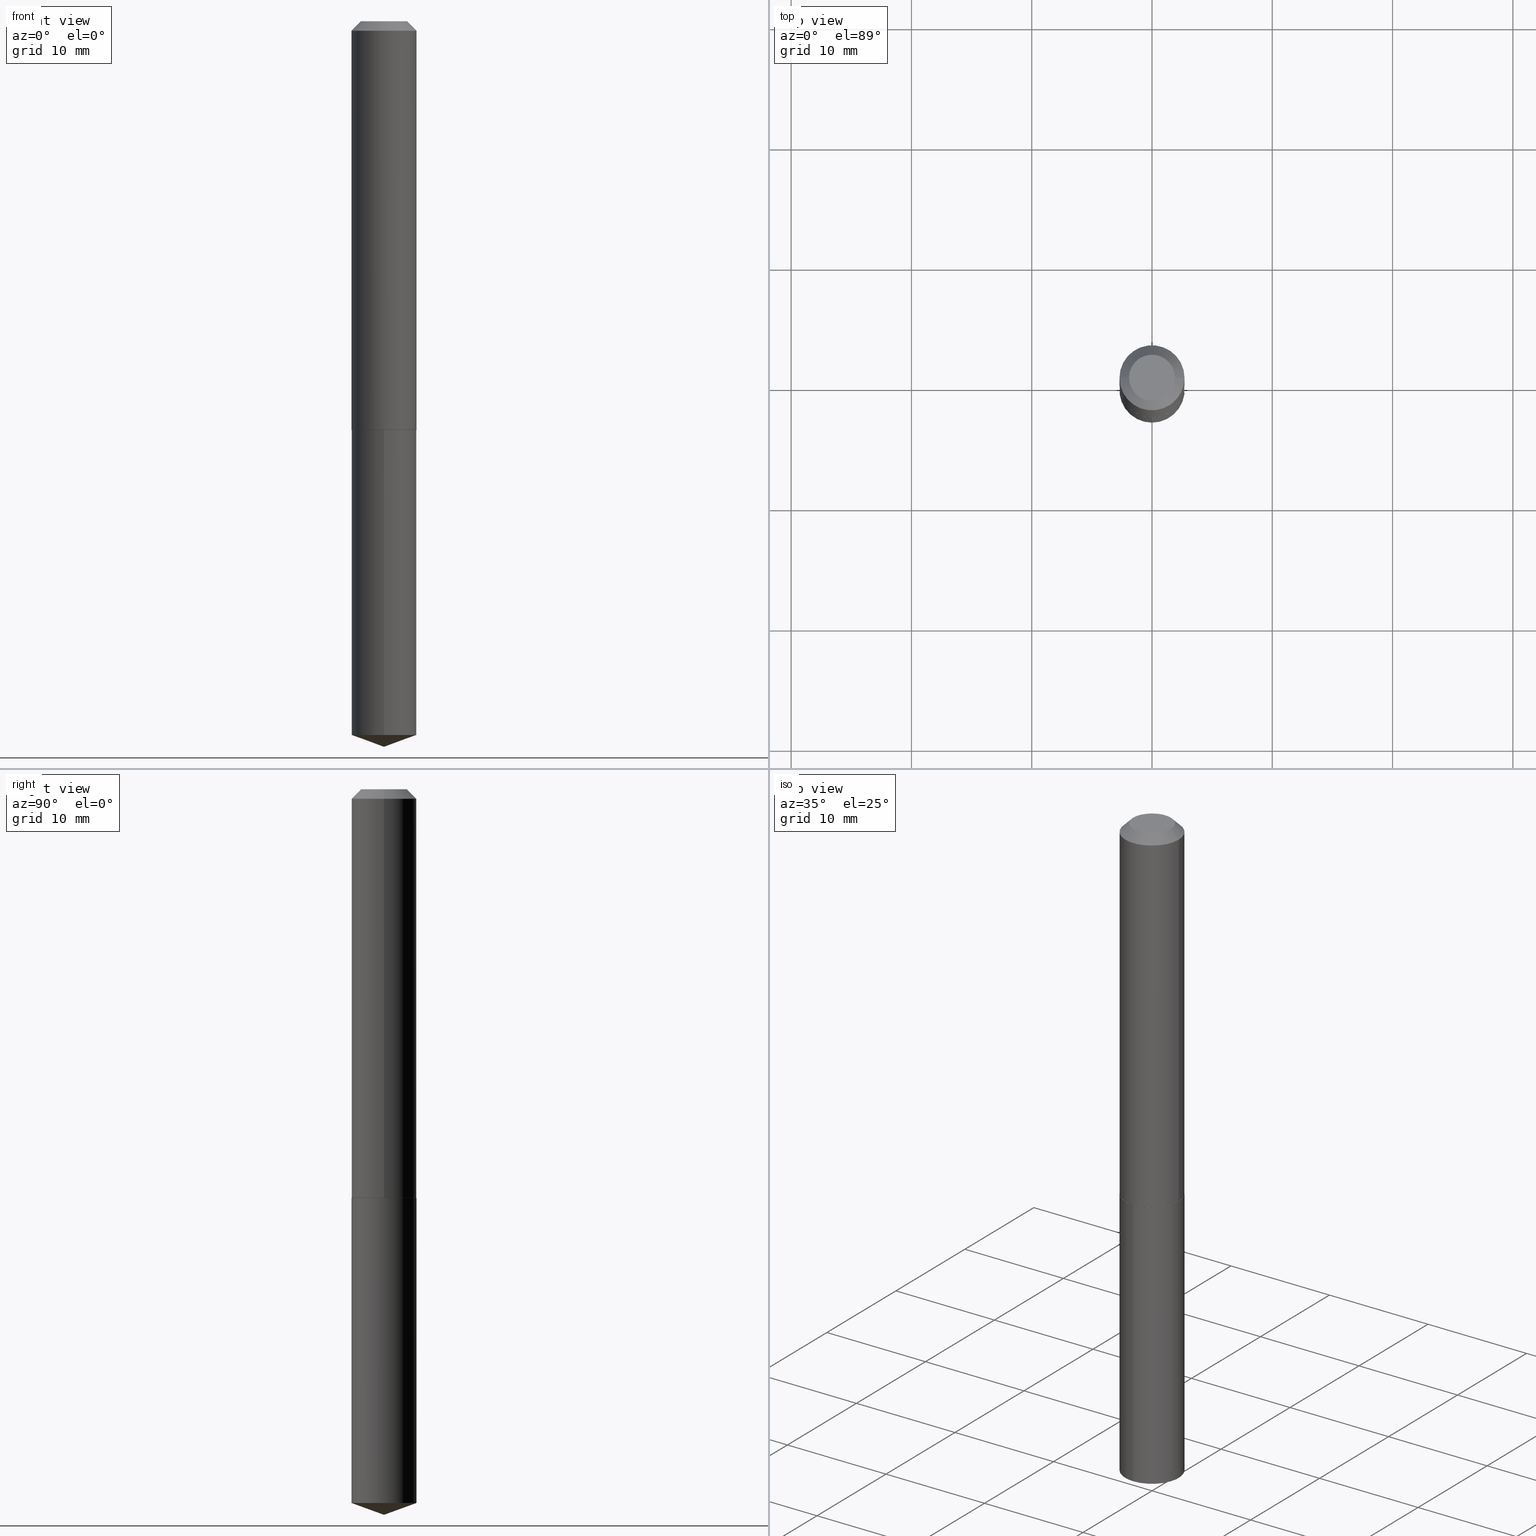
[diagram: canonical four-view strip — front | top / right | iso, engineering-drawing reading convention]
A machine part, canonical four-view strip (front | top / right | iso — engineering-drawing reading convention). The complete STEP part file that produces these views, byte-faithful:
ISO-10303-21;
HEADER;
FILE_DESCRIPTION (( 'STEP AP203' ),
    '1' );
FILE_NAME ('56212.STEP',
    '2024-04-22T20:56:59',
    ( '' ),
    ( '' ),
    'SwSTEP 2.0',
    'SolidWorks 2023',
    '' );
FILE_SCHEMA (( 'CONFIG_CONTROL_DESIGN' ));
ENDSEC;

DATA;
#1 = LINE ( 'NONE', #26, #91 ) ;
#2 = DIRECTION ( 'NONE',  ( -2.445468806185136597E-29, 3.491481338843145583E-15, 1.000000000000000000 ) ) ;
#3 = LINE ( 'NONE', #360, #253 ) ;
#4 = VERTEX_POINT ( 'NONE', #80 ) ;
#5 = CARTESIAN_POINT ( 'NONE',  ( -9.047339529489491290E-28, 1.291632102237689580E-13, 36.99507874015748143 ) ) ;
#6 = LENGTH_MEASURE_WITH_UNIT ( LENGTH_MEASURE( 0.02539999999999999897 ), #346 );
#7 = CIRCLE ( 'NONE', #116, 0.1064999999999999974 ) ;
#8 = DIRECTION ( 'NONE',  ( -2.445549265505865349E-29, 3.491366116516402154E-15, 1.000000000000000000 ) ) ;
#9 =( NAMED_UNIT ( * ) SI_UNIT ( $, .STERADIAN. ) SOLID_ANGLE_UNIT ( ) );
#10 = DIRECTION ( 'NONE',  ( 1.000000000000000000, -6.982962677686262766E-15, 0.000000000000000000 ) ) ;
#11 = DIMENSIONAL_EXPONENTS ( 1.000000000000000000, 0.000000000000000000, 0.000000000000000000, 0.000000000000000000, 0.000000000000000000, 0.000000000000000000, 0.000000000000000000 ) ;
#12 = CARTESIAN_POINT ( 'NONE',  ( 5.989671091818683705E-48, -8.551662891793989687E-34, -2.449293598294718806E-19 ) ) ;
#13 = ORIENTED_EDGE ( 'NONE', *, *, #225, .F. ) ;
#14 = PERSON_AND_ORGANIZATION_ROLE ( 'design_owner' ) ;
#15 = AXIS2_PLACEMENT_3D ( 'NONE', #123, #34, #120 ) ;
#16 = CARTESIAN_POINT ( 'NONE',  ( 7.567280135845637736E-16, 0.1064999999999953206, -1.338000000000000300 ) ) ;
#17 = PRODUCT_RELATED_PRODUCT_CATEGORY ( 'detail', '', ( #338 ) ) ;
#18 = APPROVAL_ROLE ( '' ) ;
#19 = ORIENTED_EDGE ( 'NONE', *, *, #373, .T. ) ;
#20 = CIRCLE ( 'NONE', #275, 0.1065000000000001640 ) ;
#21 = EDGE_LOOP ( 'NONE', ( #39, #240 ) ) ;
#22 = CC_DESIGN_PERSON_AND_ORGANIZATION_ASSIGNMENT ( #77, #325, ( #340 ) ) ;
#23 = AXIS2_PLACEMENT_3D ( 'NONE', #144, #75, #187 ) ;
#24 = ORIENTED_EDGE ( 'NONE', *, *, #169, .T. ) ;
#25 = DIRECTION ( 'NONE',  ( 2.445468806185136597E-29, -3.491481338843145583E-15, -1.000000000000000000 ) ) ;
#26 = CARTESIAN_POINT ( 'NONE',  ( -0.1065000000000000807, 7.567280135845072715E-16, -5.238665871121478096E-30 ) ) ;
#27 = CYLINDRICAL_SURFACE ( 'NONE', #300, 0.1065000000000000807 ) ;
#28 = CYLINDRICAL_SURFACE ( 'NONE', #319, 0.1065000000000000807 ) ;
#29 = AXIS2_PLACEMENT_3D ( 'NONE', #255, #142, #382 ) ;
#30 = DIRECTION ( 'NONE',  ( -2.445549265505865068E-29, 3.491366116516402154E-15, 1.000000000000000000 ) ) ;
#31 = ORIENTED_EDGE ( 'NONE', *, *, #162, .F. ) ;
#32 = DIRECTION ( 'NONE',  ( 1.000000000000000000, -6.982962677686267499E-15, 4.876176775795935232E-29 ) ) ;
#33 = ORIENTED_EDGE ( 'NONE', *, *, #307, .T. ) ;
#34 = DIRECTION ( 'NONE',  ( -2.445468806185136597E-29, 3.491481338843145583E-15, 1.000000000000000000 ) ) ;
#35 = ADVANCED_FACE ( 'NONE', ( #326 ), #50, .F. ) ;
#36 = CARTESIAN_POINT ( 'NONE',  ( 7.567280135845393189E-16, 0.1064999999999953206, -1.338000000000000300 ) ) ;
#37 = CLOSED_SHELL ( 'NONE', ( #156, #87, #250, #278, #72, #320, #84, #375 ) ) ;
#38 = DIRECTION ( 'NONE',  ( -6.982962677686265133E-15, -1.000000000000000000, 2.565115487008698002E-15 ) ) ;
#39 = ORIENTED_EDGE ( 'NONE', *, *, #247, .T. ) ;
#40 = PERSON ( 'UNSPECIFIED', 'UNSPECIFIED', 'UNSPECIFIED', ('UNSPECIFIED'), ('UNSPECIFIED'), ('UNSPECIFIED') ) ;
#41 = ORIENTED_EDGE ( 'NONE', *, *, #239, .T. ) ;
#42 = APPROVAL_ROLE ( '' ) ;
#43 = VECTOR ( 'NONE', #79, 39.37007874015748143 ) ;
#44 = EDGE_CURVE ( 'NONE', #150, #4, #331, .T. ) ;
#45 = ORIENTED_EDGE ( 'NONE', *, *, #44, .T. ) ;
#46 = CIRCLE ( 'NONE', #262, 0.1064999999999999974 ) ;
#47 = LOCAL_TIME ( 16, 56, 59.00000000000000000, #293 ) ;
#48 = DIRECTION ( 'NONE',  ( 0.7071067811868009256, -2.468850131084911578E-15, 0.7071067811862938868 ) ) ;
#49 = PERSON_AND_ORGANIZATION ( #40, #100 ) ;
#50 = PLANE ( 'NONE',  #252 ) ;
#51 = EDGE_CURVE ( 'NONE', #174, #153, #347, .T. ) ;
#52 = EDGE_LOOP ( 'NONE', ( #226, #290 ) ) ;
#53 = CARTESIAN_POINT ( 'NONE',  ( -0.07524999999999999745, 5.800223374153149725E-16, -4.898587196628091026E-19 ) ) ;
#54 = AXIS2_PLACEMENT_3D ( 'NONE', #111, #221, #337 ) ;
#55 = CC_DESIGN_APPROVAL ( #229, ( #88 ) ) ;
#56 = APPROVAL_DATE_TIME ( #214, #266 ) ;
#57 = CARTESIAN_POINT ( 'NONE',  ( 3.270814528272620647E-29, -4.669856290702708218E-15, -1.337500000000000133 ) ) ;
#58 = DIRECTION ( 'NONE',  ( -2.445468806185136597E-29, 3.491481338843145583E-15, 1.000000000000000000 ) ) ;
#59 = EDGE_CURVE ( 'NONE', #174, #145, #305, .T. ) ;
#60 = DIRECTION ( 'NONE',  ( 1.000000000000000000, -6.982962677686265922E-15, 0.000000000000000000 ) ) ;
#61 = FACE_OUTER_BOUND ( 'NONE', #197, .T. ) ;
#62 = CARTESIAN_POINT ( 'NONE',  ( 0.07524999999999999745, -6.780021514669125702E-16, -4.898587196547362783E-19 ) ) ;
#63 = CARTESIAN_POINT ( 'NONE',  ( -7.436855251735545052E-16, -0.1065000000000046743, -1.337999999999999856 ) ) ;
#64 = DIRECTION ( 'NONE',  ( -2.445468806185136877E-29, 3.491481338843145188E-15, 1.000000000000000000 ) ) ;
#65 = AXIS2_PLACEMENT_3D ( 'NONE', #286, #134, #316 ) ;
#66 = CC_DESIGN_PERSON_AND_ORGANIZATION_ASSIGNMENT ( #155, #291, ( #88 ) ) ;
#67 = DIRECTION ( 'NONE',  ( 6.982962677686265922E-15, 1.000000000000000000, -3.491366116516402154E-15 ) ) ;
#68 = ORIENTED_EDGE ( 'NONE', *, *, #343, .T. ) ;
#69 = ORIENTED_EDGE ( 'NONE', *, *, #44, .F. ) ;
#70 = VECTOR ( 'NONE', #350, 39.37007874015748143 ) ;
#71 = CONICAL_SURFACE ( 'NONE', #54, 108.1684023407347013, 1.221730476396035270 ) ;
#72 = ADVANCED_FACE ( 'NONE', ( #166 ), #204, .T. ) ;
#73 = ORIENTED_EDGE ( 'NONE', *, *, #147, .T. ) ;
#74 = CC_DESIGN_PERSON_AND_ORGANIZATION_ASSIGNMENT ( #49, #135, ( #340 ) ) ;
#75 = DIRECTION ( 'NONE',  ( 2.445468806185136597E-29, -3.491481338843145583E-15, -1.000000000000000000 ) ) ;
#76 = CARTESIAN_POINT ( 'NONE',  ( 0.1065000000000001640, -5.413541815876296348E-15, -1.337500000000000133 ) ) ;
#77 = PERSON_AND_ORGANIZATION ( #40, #100 ) ;
#78 = CIRCLE ( 'NONE', #246, 0.1060000000000001774 ) ;
#79 = DIRECTION ( 'NONE',  ( 0.7071067811865453523, -7.319954787623248157E-15, -0.7071067811865496822 ) ) ;
#80 = CARTESIAN_POINT ( 'NONE',  ( 0.1065000000000000113, -8.527943170124366394E-16, -0.03125000000000020817 ) ) ;
#81 = DIRECTION ( 'NONE',  ( -2.438088387897960049E-29, 3.491481338843145188E-15, 1.000000000000000000 ) ) ;
#82 = CC_DESIGN_PERSON_AND_ORGANIZATION_ASSIGNMENT ( #298, #140, ( #218 ) ) ;
#83 = CALENDAR_DATE ( 2024, 22, 4 ) ;
#84 = ADVANCED_FACE ( 'NONE', ( #177 ), #355, .T. ) ;
#85 = DIRECTION ( 'NONE',  ( -2.445468806185136597E-29, 3.491481338843145583E-15, 1.000000000000000000 ) ) ;
#86 = AXIS2_PLACEMENT_3D ( 'NONE', #5, #93, #288 ) ;
#87 = ADVANCED_FACE ( 'NONE', ( #180 ), #28, .T. ) ;
#88 = PRODUCT_DEFINITION ( 'UNKNOWN', '', #340, #163 ) ;
#89 = ORIENTED_EDGE ( 'NONE', *, *, #247, .F. ) ;
#90 = CARTESIAN_POINT ( 'NONE',  ( 5.807964196434160558E-29, -8.292302861672819530E-15, -2.375000000000000000 ) ) ;
#91 = VECTOR ( 'NONE', #146, 39.37007874015748143 ) ;
#92 = ORIENTED_EDGE ( 'NONE', *, *, #281, .T. ) ;
#93 = DIRECTION ( 'NONE',  ( -2.445549265505865068E-29, 3.491366116516402154E-15, 1.000000000000000000 ) ) ;
#94 = VERTEX_POINT ( 'NONE', #62 ) ;
#95 = CARTESIAN_POINT ( 'NONE',  ( -0.1060000000000001774, -3.915777504292310865E-15, -1.337999999999999856 ) ) ;
#96 = DATE_TIME_ROLE ( 'creation_date' ) ;
#97 = ADVANCED_FACE ( 'NONE', ( #148 ), #71, .T. ) ;
#98 = PERSON_AND_ORGANIZATION ( #40, #100 ) ;
#99 = CIRCLE ( 'NONE', #167, 0.1065000000000000113 ) ;
#100 = ORGANIZATION ( 'UNSPECIFIED', 'UNSPECIFIED', '' ) ;
#101 = ORIENTED_EDGE ( 'NONE', *, *, #162, .T. ) ;
#102 = ADVANCED_BREP_SHAPE_REPRESENTATION ( '56212', ( #132, #130, #211 ), #105 ) ;
#103 = APPROVAL_DATE_TIME ( #285, #229 ) ;
#104 = AXIS2_PLACEMENT_3D ( 'NONE', #133, #265, #10 ) ;
#105 =( GEOMETRIC_REPRESENTATION_CONTEXT ( 3 ) GLOBAL_UNCERTAINTY_ASSIGNED_CONTEXT ( ( #314 ) ) GLOBAL_UNIT_ASSIGNED_CONTEXT ( ( #131, #259, #9 ) ) REPRESENTATION_CONTEXT ( 'NONE', 'WORKASPACE' ) );
#106 = ORIENTED_EDGE ( 'NONE', *, *, #352, .T. ) ;
#107 = LINE ( 'NONE', #76, #381 ) ;
#108 = VERTEX_POINT ( 'NONE', #243 ) ;
#109 = CONICAL_SURFACE ( 'NONE', #121, 0.1065000000000000113, 0.7853981633974452814 ) ;
#110 = CARTESIAN_POINT ( 'NONE',  ( 3.270814528272620647E-29, -4.669856290702708218E-15, -1.337500000000000133 ) ) ;
#111 = CARTESIAN_POINT ( 'NONE',  ( -9.047339529489491290E-28, 1.291632102237689580E-13, 36.99507874015748143 ) ) ;
#112 = CARTESIAN_POINT ( 'NONE',  ( 5.808179505576429327E-29, -8.291994526726455265E-15, -2.375000000000000000 ) ) ;
#113 = CYLINDRICAL_SURFACE ( 'NONE', #29, 0.1064999999999999974 ) ;
#114 = DIRECTION ( 'NONE',  ( -2.445468806185136597E-29, 3.491481338843145583E-15, 1.000000000000000000 ) ) ;
#115 = DIRECTION ( 'NONE',  ( -2.445468806185136597E-29, 3.491481338843145583E-15, 1.000000000000000000 ) ) ;
#116 = AXIS2_PLACEMENT_3D ( 'NONE', #200, #30, #38 ) ;
#117 = PLANE ( 'NONE',  #370 ) ;
#118 = CARTESIAN_POINT ( 'NONE',  ( -0.1065000000000000113, -1.632754527686270697E-15, -0.03125000000000020817 ) ) ;
#119 = ORIENTED_EDGE ( 'NONE', *, *, #124, .F. ) ;
#120 = DIRECTION ( 'NONE',  ( 1.000000000000000000, -6.982962677686265922E-15, 4.876211453340348118E-29 ) ) ;
#121 = AXIS2_PLACEMENT_3D ( 'NONE', #184, #25, #386 ) ;
#122 = LOCAL_TIME ( 16, 56, 59.00000000000000000, #165 ) ;
#123 = CARTESIAN_POINT ( 'NONE',  ( 1.197934218363736741E-47, -1.710332578358797937E-33, -4.898587196589437612E-19 ) ) ;
#124 = EDGE_CURVE ( 'NONE', #145, #189, #292, .T. ) ;
#125 = ORIENTED_EDGE ( 'NONE', *, *, #307, .F. ) ;
#126 = DIRECTION ( 'NONE',  ( -2.445549265505865349E-29, 3.491366116516402154E-15, 1.000000000000000000 ) ) ;
#127 = ORIENTED_EDGE ( 'NONE', *, *, #178, .F. ) ;
#128 = CALENDAR_DATE ( 2024, 22, 4 ) ;
#129 = VECTOR ( 'NONE', #311, 39.37007874015748854 ) ;
#130 = MANIFOLD_SOLID_BREP ( 'Body-Move/Copy2[2]', #37 ) ;
#131 =( CONVERSION_BASED_UNIT ( 'INCH', #6 ) LENGTH_UNIT ( ) NAMED_UNIT ( #11 ) );
#132 = MANIFOLD_SOLID_BREP ( 'Body-Move/Copy2[1]', #274 ) ;
#133 = CARTESIAN_POINT ( 'NONE',  ( 3.270814528272620647E-29, -4.669856290702708218E-15, -1.337500000000000133 ) ) ;
#134 = DIRECTION ( 'NONE',  ( -2.445549265505865068E-29, 3.491366116516402154E-15, 1.000000000000000000 ) ) ;
#135 = PERSON_AND_ORGANIZATION_ROLE ( 'design_supplier' ) ;
#136 = COORDINATED_UNIVERSAL_TIME_OFFSET ( 5, 0, .BEHIND. ) ;
#137 = DIRECTION ( 'NONE',  ( -6.982962677686265133E-15, -1.000000000000000000, 2.565115487008698002E-15 ) ) ;
#138 = ORIENTED_EDGE ( 'NONE', *, *, #169, .F. ) ;
#139 = LINE ( 'NONE', #270, #43 ) ;
#140 = PERSON_AND_ORGANIZATION_ROLE ( 'classification_officer' ) ;
#141 = ORIENTED_EDGE ( 'NONE', *, *, #59, .T. ) ;
#142 = DIRECTION ( 'NONE',  ( -2.445549265505865068E-29, 3.491366116516402154E-15, 1.000000000000000000 ) ) ;
#143 = AXIS2_PLACEMENT_3D ( 'NONE', #110, #114, #364 ) ;
#144 = CARTESIAN_POINT ( 'NONE',  ( 7.642090019328602662E-31, -1.091087918388490267E-16, -0.03125000000000020817 ) ) ;
#145 = VERTEX_POINT ( 'NONE', #248 ) ;
#146 = DIRECTION ( 'NONE',  ( -2.445468806185136877E-29, 3.491481338843145188E-15, 1.000000000000000000 ) ) ;
#147 = EDGE_CURVE ( 'NONE', #312, #108, #3, .T. ) ;
#148 = FACE_OUTER_BOUND ( 'NONE', #306, .T. ) ;
#149 = DIRECTION ( 'NONE',  ( 1.000000000000000000, -6.982962677686265922E-15, 0.000000000000000000 ) ) ;
#150 = VERTEX_POINT ( 'NONE', #118 ) ;
#151 = DIRECTION ( 'NONE',  ( 1.000000000000000000, -6.982962677686262766E-15, 0.000000000000000000 ) ) ;
#152 = DIRECTION ( 'NONE',  ( 1.000000000000000000, -6.982962677686262766E-15, 0.000000000000000000 ) ) ;
#153 = VERTEX_POINT ( 'NONE', #365 ) ;
#154 = ORIENTED_EDGE ( 'NONE', *, *, #178, .T. ) ;
#155 = PERSON_AND_ORGANIZATION ( #40, #100 ) ;
#156 = ADVANCED_FACE ( 'NONE', ( #220 ), #109, .T. ) ;
#157 = AXIS2_PLACEMENT_3D ( 'NONE', #251, #2, #191 ) ;
#158 = AXIS2_PLACEMENT_3D ( 'NONE', #358, #81, #173 ) ;
#159 = ORIENTED_EDGE ( 'NONE', *, *, #354, .T. ) ;
#160 = CARTESIAN_POINT ( 'NONE',  ( -7.436855251735545052E-16, -0.1065000000000046743, -1.337999999999999856 ) ) ;
#161 = MECHANICAL_CONTEXT ( 'NONE', #244, 'mechanical' ) ;
#162 = EDGE_CURVE ( 'NONE', #341, #150, #379, .T. ) ;
#163 = DESIGN_CONTEXT ( 'detailed design', #237, 'design' ) ;
#164 = VERTEX_POINT ( 'NONE', #16 ) ;
#165 = COORDINATED_UNIVERSAL_TIME_OFFSET ( 5, 0, .BEHIND. ) ;
#166 = FACE_OUTER_BOUND ( 'NONE', #280, .T. ) ;
#167 = AXIS2_PLACEMENT_3D ( 'NONE', #351, #263, #171 ) ;
#168 = LOCAL_TIME ( 16, 56, 59.00000000000000000, #212 ) ;
#169 = EDGE_CURVE ( 'NONE', #312, #359, #368, .T. ) ;
#170 = CALENDAR_DATE ( 2024, 22, 4 ) ;
#171 = DIRECTION ( 'NONE',  ( 1.000000000000000000, -6.982962677686267499E-15, 0.000000000000000000 ) ) ;
#172 = APPROVAL_STATUS ( 'not_yet_approved' ) ;
#173 = DIRECTION ( 'NONE',  ( 1.000000000000000000, -6.982962677686265922E-15, 4.876176775795935793E-29 ) ) ;
#174 = VERTEX_POINT ( 'NONE', #95 ) ;
#175 = VECTOR ( 'NONE', #126, 39.37007874015748143 ) ;
#176 = CIRCLE ( 'NONE', #254, 0.1064999999999999974 ) ;
#177 = FACE_OUTER_BOUND ( 'NONE', #296, .T. ) ;
#178 = EDGE_CURVE ( 'NONE', #359, #356, #309, .T. ) ;
#179 = SECURITY_CLASSIFICATION_LEVEL ( 'unclassified' ) ;
#180 = FACE_OUTER_BOUND ( 'NONE', #228, .T. ) ;
#181 = DIRECTION ( 'NONE',  ( 1.000000000000000000, -6.982962677686265922E-15, 4.876211453340348118E-29 ) ) ;
#182 = VECTOR ( 'NONE', #198, 39.37007874015748143 ) ;
#183 = CC_DESIGN_APPROVAL ( #266, ( #218 ) ) ;
#184 = CARTESIAN_POINT ( 'NONE',  ( 7.642090019328602662E-31, -1.091087918388490267E-16, -0.03125000000000020817 ) ) ;
#185 = LINE ( 'NONE', #190, #210 ) ;
#186 = SHAPE_DEFINITION_REPRESENTATION ( #196, #102 ) ;
#187 = DIRECTION ( 'NONE',  ( -1.000000000000000000, 6.982962677686267499E-15, 0.000000000000000000 ) ) ;
#188 = ADVANCED_FACE ( 'NONE', ( #284 ), #332, .T. ) ;
#189 = VERTEX_POINT ( 'NONE', #194 ) ;
#190 = CARTESIAN_POINT ( 'NONE',  ( 0.1065000000000000807, -7.436855251735880318E-16, 5.193128266222675235E-30 ) ) ;
#191 = DIRECTION ( 'NONE',  ( 1.000000000000000000, -6.982962677686267499E-15, 0.000000000000000000 ) ) ;
#192 = EDGE_LOOP ( 'NONE', ( #287, #277, #89, #127 ) ) ;
#193 = FACE_OUTER_BOUND ( 'NONE', #52, .T. ) ;
#194 = CARTESIAN_POINT ( 'NONE',  ( 0.1065000000000001640, -5.413541815876296348E-15, -1.337500000000000133 ) ) ;
#195 = CARTESIAN_POINT ( 'NONE',  ( 5.713275440693733173E-29, -8.156813463134189614E-15, -2.336237170050650125 ) ) ;
#196 = PRODUCT_DEFINITION_SHAPE ( 'NONE', 'NONE',  #88 ) ;
#197 = EDGE_LOOP ( 'NONE', ( #258, #268, #154, #349 ) ) ;
#198 = DIRECTION ( 'NONE',  ( -6.561838499445211896E-15, -0.9396926207859086499, 0.3420201433256677137 ) ) ;
#199 = EDGE_CURVE ( 'NONE', #94, #341, #233, .T. ) ;
#200 = CARTESIAN_POINT ( 'NONE',  ( 5.713275440693733173E-29, -8.156813463134189614E-15, -2.336237170050650125 ) ) ;
#201 = APPROVAL_STATUS ( 'not_yet_approved' ) ;
#202 = EDGE_CURVE ( 'NONE', #108, #164, #377, .T. ) ;
#203 = APPLICATION_PROTOCOL_DEFINITION ( 'international standard', 'config_control_design', 1994, #244 ) ;
#204 = CONICAL_SURFACE ( 'NONE', #104, 0.1065000000000001640, 0.7853981633978068810 ) ;
#205 = LOCAL_TIME ( 16, 56, 59.00000000000000000, #231 ) ;
#206 = CC_DESIGN_DATE_AND_TIME_ASSIGNMENT ( #207, #272, ( #218 ) ) ;
#207 = DATE_AND_TIME ( #170, #168 ) ;
#208 = DIRECTION ( 'NONE',  ( -2.445549265505865068E-29, 3.491366116516402154E-15, 1.000000000000000000 ) ) ;
#209 = ORIENTED_EDGE ( 'NONE', *, *, #352, .F. ) ;
#210 = VECTOR ( 'NONE', #64, 39.37007874015748143 ) ;
#211 = AXIS2_PLACEMENT_3D ( 'NONE', #264, #310, #313 ) ;
#212 = COORDINATED_UNIVERSAL_TIME_OFFSET ( 5, 0, .BEHIND. ) ;
#213 = CYLINDRICAL_SURFACE ( 'NONE', #217, 0.1064999999999999974 ) ;
#214 = DATE_AND_TIME ( #83, #384 ) ;
#215 = DIRECTION ( 'NONE',  ( 6.676917655467978384E-15, 0.9396926207859110924, 0.3420201433256611079 ) ) ;
#216 = DIRECTION ( 'NONE',  ( -2.445468806185136597E-29, 3.491481338843145583E-15, 1.000000000000000000 ) ) ;
#217 = AXIS2_PLACEMENT_3D ( 'NONE', #327, #219, #297 ) ;
#218 = SECURITY_CLASSIFICATION ( '', '', #179 ) ;
#219 = DIRECTION ( 'NONE',  ( -2.445549265505865068E-29, 3.491366116516402154E-15, 1.000000000000000000 ) ) ;
#220 = FACE_OUTER_BOUND ( 'NONE', #238, .T. ) ;
#221 = DIRECTION ( 'NONE',  ( -2.445549265505865068E-29, 3.491366116516402154E-15, 1.000000000000000000 ) ) ;
#222 = DIRECTION ( 'NONE',  ( 2.445549265505864788E-29, -3.491366116516402154E-15, -1.000000000000000000 ) ) ;
#223 = EDGE_LOOP ( 'NONE', ( #209, #367, #68, #69 ) ) ;
#224 = AXIS2_PLACEMENT_3D ( 'NONE', #328, #236, #181 ) ;
#225 = EDGE_CURVE ( 'NONE', #108, #359, #7, .T. ) ;
#226 = ORIENTED_EDGE ( 'NONE', *, *, #373, .F. ) ;
#227 = PERSON_AND_ORGANIZATION ( #40, #100 ) ;
#228 = EDGE_LOOP ( 'NONE', ( #159, #106, #315, #242 ) ) ;
#229 = APPROVAL ( #201, 'UNSPECIFIED' ) ;
#230 = APPROVAL_PERSON_ORGANIZATION ( #324, #336, #380 ) ;
#231 = COORDINATED_UNIVERSAL_TIME_OFFSET ( 5, 0, .BEHIND. ) ;
#232 = APPROVAL_DATE_TIME ( #353, #336 ) ;
#233 = CIRCLE ( 'NONE', #15, 0.07524999999999999745 ) ;
#234 = EDGE_CURVE ( 'NONE', #164, #356, #282, .T. ) ;
#235 = CARTESIAN_POINT ( 'NONE',  ( 3.272037262675712888E-29, -4.671602031372128143E-15, -1.338000000000000078 ) ) ;
#236 = DIRECTION ( 'NONE',  ( -2.445468806185136597E-29, 3.491481338843145583E-15, 1.000000000000000000 ) ) ;
#237 = APPLICATION_CONTEXT ( 'configuration controlled 3d designs of mechanical parts and assemblies' ) ;
#238 = EDGE_LOOP ( 'NONE', ( #348, #33, #41, #31 ) ) ;
#239 = EDGE_CURVE ( 'NONE', #4, #150, #99, .T. ) ;
#240 = ORIENTED_EDGE ( 'NONE', *, *, #234, .T. ) ;
#241 = CC_DESIGN_APPROVAL ( #336, ( #340 ) ) ;
#242 = ORIENTED_EDGE ( 'NONE', *, *, #343, .F. ) ;
#243 = CARTESIAN_POINT ( 'NONE',  ( 7.567280135845635764E-16, 0.1064999999999918096, -2.336237170050650125 ) ) ;
#244 = APPLICATION_CONTEXT ( 'configuration controlled 3d designs of mechanical parts and assemblies' ) ;
#245 = CARTESIAN_POINT ( 'NONE',  ( -7.436855251735300505E-16, -0.1065000000000081160, -2.336237170050649681 ) ) ;
#246 = AXIS2_PLACEMENT_3D ( 'NONE', #362, #85, #149 ) ;
#247 = EDGE_CURVE ( 'NONE', #356, #164, #46, .T. ) ;
#248 = CARTESIAN_POINT ( 'NONE',  ( -0.1065000000000001640, -3.913128277118200453E-15, -1.337500000000000133 ) ) ;
#249 = ORIENTED_EDGE ( 'NONE', *, *, #147, .F. ) ;
#250 = ADVANCED_FACE ( 'NONE', ( #267 ), #378, .T. ) ;
#251 = CARTESIAN_POINT ( 'NONE',  ( 7.642090019328602662E-31, -1.091087918388490267E-16, -0.03125000000000020817 ) ) ;
#252 = AXIS2_PLACEMENT_3D ( 'NONE', #333, #222, #67 ) ;
#253 = VECTOR ( 'NONE', #215, 39.37007874015748854 ) ;
#254 = AXIS2_PLACEMENT_3D ( 'NONE', #195, #372, #344 ) ;
#255 = CARTESIAN_POINT ( 'NONE',  ( 3.272037262675712888E-29, -4.671602031372128143E-15, -1.338000000000000078 ) ) ;
#256 = ADVANCED_FACE ( 'NONE', ( #301 ), #213, .T. ) ;
#257 = CALENDAR_DATE ( 2024, 22, 4 ) ;
#258 = ORIENTED_EDGE ( 'NONE', *, *, #202, .F. ) ;
#259 =( NAMED_UNIT ( * ) PLANE_ANGLE_UNIT ( ) SI_UNIT ( $, .RADIAN. ) );
#260 = ORIENTED_EDGE ( 'NONE', *, *, #304, .F. ) ;
#261 = APPLICATION_PROTOCOL_DEFINITION ( 'international standard', 'config_control_design', 1994, #237 ) ;
#262 = AXIS2_PLACEMENT_3D ( 'NONE', #235, #208, #137 ) ;
#263 = DIRECTION ( 'NONE',  ( -2.445468806185136597E-29, 3.491481338843145583E-15, 1.000000000000000000 ) ) ;
#264 = CARTESIAN_POINT ( 'NONE',  ( 0.000000000000000000, 0.000000000000000000, 0.000000000000000000 ) ) ;
#265 = DIRECTION ( 'NONE',  ( -2.445468806185136597E-29, 3.491481338843145583E-15, 1.000000000000000000 ) ) ;
#266 = APPROVAL ( #172, 'UNSPECIFIED' ) ;
#267 = FACE_OUTER_BOUND ( 'NONE', #283, .T. ) ;
#268 = ORIENTED_EDGE ( 'NONE', *, *, #225, .T. ) ;
#269 = APPROVAL_STATUS ( 'not_yet_approved' ) ;
#270 = CARTESIAN_POINT ( 'NONE',  ( 0.1065000000000000113, -8.397518286015172026E-16, -0.03125000000000020817 ) ) ;
#271 = ORIENTED_EDGE ( 'NONE', *, *, #385, .F. ) ;
#272 = DATE_TIME_ROLE ( 'classification_date' ) ;
#273 = ADVANCED_FACE ( 'NONE', ( #61 ), #113, .T. ) ;
#274 = CLOSED_SHELL ( 'NONE', ( #256, #97, #188, #273, #35 ) ) ;
#275 = AXIS2_PLACEMENT_3D ( 'NONE', #335, #58, #152 ) ;
#276 = FACE_OUTER_BOUND ( 'NONE', #223, .T. ) ;
#277 = ORIENTED_EDGE ( 'NONE', *, *, #202, .T. ) ;
#278 = ADVANCED_FACE ( 'NONE', ( #193 ), #361, .F. ) ;
#279 = FACE_OUTER_BOUND ( 'NONE', #329, .T. ) ;
#280 = EDGE_LOOP ( 'NONE', ( #299, #345, #323, #119 ) ) ;
#281 = EDGE_CURVE ( 'NONE', #341, #94, #383, .T. ) ;
#282 = CIRCLE ( 'NONE', #65, 0.1064999999999999974 ) ;
#283 = EDGE_LOOP ( 'NONE', ( #19, #141, #371, #260 ) ) ;
#284 = FACE_OUTER_BOUND ( 'NONE', #322, .T. ) ;
#285 = DATE_AND_TIME ( #128, #122 ) ;
#286 = CARTESIAN_POINT ( 'NONE',  ( 3.272037262675712888E-29, -4.671602031372128143E-15, -1.338000000000000078 ) ) ;
#287 = ORIENTED_EDGE ( 'NONE', *, *, #385, .T. ) ;
#288 = DIRECTION ( 'NONE',  ( -6.982962677686267499E-15, -1.000000000000000000, 3.475157955500680377E-15 ) ) ;
#289 = DIRECTION ( 'NONE',  ( 2.438088387897960049E-29, -3.491481338843145188E-15, -1.000000000000000000 ) ) ;
#290 = ORIENTED_EDGE ( 'NONE', *, *, #51, .F. ) ;
#291 = PERSON_AND_ORGANIZATION_ROLE ( 'creator' ) ;
#292 = CIRCLE ( 'NONE', #294, 0.1065000000000001640 ) ;
#293 = COORDINATED_UNIVERSAL_TIME_OFFSET ( 5, 0, .BEHIND. ) ;
#294 = AXIS2_PLACEMENT_3D ( 'NONE', #57, #115, #151 ) ;
#295 = CC_DESIGN_PERSON_AND_ORGANIZATION_ASSIGNMENT ( #227, #14, ( #338 ) ) ;
#296 = EDGE_LOOP ( 'NONE', ( #125, #308, #101, #45 ) ) ;
#297 = DIRECTION ( 'NONE',  ( -6.982962677686265133E-15, -1.000000000000000000, 2.565115487008698002E-15 ) ) ;
#298 = PERSON_AND_ORGANIZATION ( #40, #100 ) ;
#299 = ORIENTED_EDGE ( 'NONE', *, *, #59, .F. ) ;
#300 = AXIS2_PLACEMENT_3D ( 'NONE', #342, #216, #32 ) ;
#301 = FACE_OUTER_BOUND ( 'NONE', #192, .T. ) ;
#302 = CC_DESIGN_SECURITY_CLASSIFICATION ( #218, ( #340 ) ) ;
#303 = CARTESIAN_POINT ( 'NONE',  ( 0.000000000000000000, 0.000000000000000000, 0.000000000000000000 ) ) ;
#304 = EDGE_CURVE ( 'NONE', #153, #189, #107, .T. ) ;
#305 = LINE ( 'NONE', #389, #129 ) ;
#306 = EDGE_LOOP ( 'NONE', ( #138, #73, #271 ) ) ;
#307 = EDGE_CURVE ( 'NONE', #94, #4, #139, .T. ) ;
#308 = ORIENTED_EDGE ( 'NONE', *, *, #281, .F. ) ;
#309 = LINE ( 'NONE', #160, #175 ) ;
#310 = DIRECTION ( 'NONE',  ( 0.000000000000000000, 0.000000000000000000, 1.000000000000000000 ) ) ;
#311 = DIRECTION ( 'NONE',  ( -0.7071067811868009256, 7.493145998871269239E-15, 0.7071067811862938868 ) ) ;
#312 = VERTEX_POINT ( 'NONE', #112 ) ;
#313 = DIRECTION ( 'NONE',  ( 1.000000000000000000, 0.000000000000000000, 0.000000000000000000 ) ) ;
#314 = UNCERTAINTY_MEASURE_WITH_UNIT (LENGTH_MEASURE( 1.000000000000000082E-05 ), #131, 'distance_accuracy_value', 'NONE');
#315 = ORIENTED_EDGE ( 'NONE', *, *, #239, .F. ) ;
#316 = DIRECTION ( 'NONE',  ( -6.982962677686265133E-15, -1.000000000000000000, 2.565115487008698002E-15 ) ) ;
#317 = CARTESIAN_POINT ( 'NONE',  ( -0.1065000000000000113, 6.345767333347384381E-16, -0.03125000000000020817 ) ) ;
#318 = DIRECTION ( 'NONE',  ( -1.000000000000000000, 6.982962677686265922E-15, -4.876176775795935793E-29 ) ) ;
#319 = AXIS2_PLACEMENT_3D ( 'NONE', #303, #330, #366 ) ;
#320 = ADVANCED_FACE ( 'NONE', ( #276 ), #27, .T. ) ;
#321 = PERSON_AND_ORGANIZATION ( #40, #100 ) ;
#322 = EDGE_LOOP ( 'NONE', ( #249, #24, #13 ) ) ;
#323 = ORIENTED_EDGE ( 'NONE', *, *, #304, .T. ) ;
#324 = PERSON_AND_ORGANIZATION ( #40, #100 ) ;
#325 = PERSON_AND_ORGANIZATION_ROLE ( 'creator' ) ;
#326 = FACE_OUTER_BOUND ( 'NONE', #21, .T. ) ;
#327 = CARTESIAN_POINT ( 'NONE',  ( 3.272037262675712888E-29, -4.671602031372128143E-15, -1.338000000000000078 ) ) ;
#328 = CARTESIAN_POINT ( 'NONE',  ( 1.197934218363736741E-47, -1.710332578358797937E-33, -4.898587196589437612E-19 ) ) ;
#329 = EDGE_LOOP ( 'NONE', ( #92, #376 ) ) ;
#330 = DIRECTION ( 'NONE',  ( -2.445468806185136597E-29, 3.491481338843145583E-15, 1.000000000000000000 ) ) ;
#331 = CIRCLE ( 'NONE', #157, 0.1065000000000000113 ) ;
#332 = CONICAL_SURFACE ( 'NONE', #86, 108.1684023407347013, 1.221730476396035270 ) ;
#333 = CARTESIAN_POINT ( 'NONE',  ( 3.272037262675712888E-29, -4.671602031372128143E-15, -1.338000000000000078 ) ) ;
#334 = APPROVAL_PERSON_ORGANIZATION ( #321, #266, #18 ) ;
#335 = CARTESIAN_POINT ( 'NONE',  ( 3.270814528272620647E-29, -4.669856290702708218E-15, -1.337500000000000133 ) ) ;
#336 = APPROVAL ( #269, 'UNSPECIFIED' ) ;
#337 = DIRECTION ( 'NONE',  ( -6.982962677686267499E-15, -1.000000000000000000, 3.475157955500680377E-15 ) ) ;
#338 = PRODUCT ( '56212', '56212', '', ( #161 ) ) ;
#339 = VECTOR ( 'NONE', #8, 39.37007874015748143 ) ;
#340 = PRODUCT_DEFINITION_FORMATION_WITH_SPECIFIED_SOURCE ( 'ANY', '', #338, .NOT_KNOWN. ) ;
#341 = VERTEX_POINT ( 'NONE', #53 ) ;
#342 = CARTESIAN_POINT ( 'NONE',  ( 0.000000000000000000, 0.000000000000000000, 0.000000000000000000 ) ) ;
#343 = EDGE_CURVE ( 'NONE', #189, #4, #185, .T. ) ;
#344 = DIRECTION ( 'NONE',  ( -6.982962677686265133E-15, -1.000000000000000000, 2.565115487008698002E-15 ) ) ;
#345 = ORIENTED_EDGE ( 'NONE', *, *, #51, .T. ) ;
#346 =( LENGTH_UNIT ( ) NAMED_UNIT ( * ) SI_UNIT ( $, .METRE. ) );
#347 = CIRCLE ( 'NONE', #363, 0.1060000000000001774 ) ;
#348 = ORIENTED_EDGE ( 'NONE', *, *, #199, .F. ) ;
#349 = ORIENTED_EDGE ( 'NONE', *, *, #234, .F. ) ;
#350 = DIRECTION ( 'NONE',  ( -0.7071067811865453523, 2.468850131082234184E-15, -0.7071067811865496822 ) ) ;
#351 = CARTESIAN_POINT ( 'NONE',  ( 7.642090019328602662E-31, -1.091087918388490267E-16, -0.03125000000000020817 ) ) ;
#352 = EDGE_CURVE ( 'NONE', #145, #150, #1, .T. ) ;
#353 = DATE_AND_TIME ( #357, #47 ) ;
#354 = EDGE_CURVE ( 'NONE', #189, #145, #20, .T. ) ;
#355 = CONICAL_SURFACE ( 'NONE', #23, 0.1065000000000000113, 0.7853981633974452814 ) ;
#356 = VERTEX_POINT ( 'NONE', #63 ) ;
#357 = CALENDAR_DATE ( 2024, 22, 4 ) ;
#358 = CARTESIAN_POINT ( 'NONE',  ( 5.679981911091141877E-29, -1.223288243143091366E-15, -1.337999999999999856 ) ) ;
#359 = VERTEX_POINT ( 'NONE', #245 ) ;
#360 = CARTESIAN_POINT ( 'NONE',  ( 5.808181393583454437E-29, -8.291994526726455265E-15, -2.375000000000000000 ) ) ;
#361 = PLANE ( 'NONE',  #158 ) ;
#362 = CARTESIAN_POINT ( 'NONE',  ( 3.272037262675711767E-29, -4.671602031372127355E-15, -1.337999999999999856 ) ) ;
#363 = AXIS2_PLACEMENT_3D ( 'NONE', #369, #388, #60 ) ;
#364 = DIRECTION ( 'NONE',  ( 1.000000000000000000, -6.982962677686262766E-15, 0.000000000000000000 ) ) ;
#365 = CARTESIAN_POINT ( 'NONE',  ( 0.1060000000000001774, -5.411796075206873267E-15, -1.337999999999999856 ) ) ;
#366 = DIRECTION ( 'NONE',  ( 1.000000000000000000, -6.982962677686267499E-15, 4.876176775795935232E-29 ) ) ;
#367 = ORIENTED_EDGE ( 'NONE', *, *, #124, .T. ) ;
#368 = LINE ( 'NONE', #90, #182 ) ;
#369 = CARTESIAN_POINT ( 'NONE',  ( 3.272037262675711767E-29, -4.671602031372127355E-15, -1.337999999999999856 ) ) ;
#370 = AXIS2_PLACEMENT_3D ( 'NONE', #12, #289, #318 ) ;
#371 = ORIENTED_EDGE ( 'NONE', *, *, #354, .F. ) ;
#372 = DIRECTION ( 'NONE',  ( -2.445549265505865068E-29, 3.491366116516402154E-15, 1.000000000000000000 ) ) ;
#373 = EDGE_CURVE ( 'NONE', #153, #174, #78, .T. ) ;
#374 = DATE_AND_TIME ( #257, #205 ) ;
#375 = ADVANCED_FACE ( 'NONE', ( #279 ), #117, .F. ) ;
#376 = ORIENTED_EDGE ( 'NONE', *, *, #199, .T. ) ;
#377 = LINE ( 'NONE', #36, #339 ) ;
#378 = CONICAL_SURFACE ( 'NONE', #143, 0.1065000000000001640, 0.7853981633978068810 ) ;
#379 = LINE ( 'NONE', #317, #70 ) ;
#380 = APPROVAL_ROLE ( '' ) ;
#381 = VECTOR ( 'NONE', #48, 39.37007874015748854 ) ;
#382 = DIRECTION ( 'NONE',  ( -6.982962677686265133E-15, -1.000000000000000000, 2.565115487008698002E-15 ) ) ;
#383 = CIRCLE ( 'NONE', #224, 0.07524999999999999745 ) ;
#384 = LOCAL_TIME ( 16, 56, 59.00000000000000000, #136 ) ;
#385 = EDGE_CURVE ( 'NONE', #359, #108, #176, .T. ) ;
#386 = DIRECTION ( 'NONE',  ( -1.000000000000000000, 6.982962677686267499E-15, 0.000000000000000000 ) ) ;
#387 = CC_DESIGN_DATE_AND_TIME_ASSIGNMENT ( #374, #96, ( #88 ) ) ;
#388 = DIRECTION ( 'NONE',  ( -2.445468806185136597E-29, 3.491481338843145583E-15, 1.000000000000000000 ) ) ;
#389 = CARTESIAN_POINT ( 'NONE',  ( -0.1065000000000001640, -3.913128277118200453E-15, -1.337500000000000133 ) ) ;
#390 = APPROVAL_PERSON_ORGANIZATION ( #98, #229, #42 ) ;
ENDSEC;
END-ISO-10303-21;
